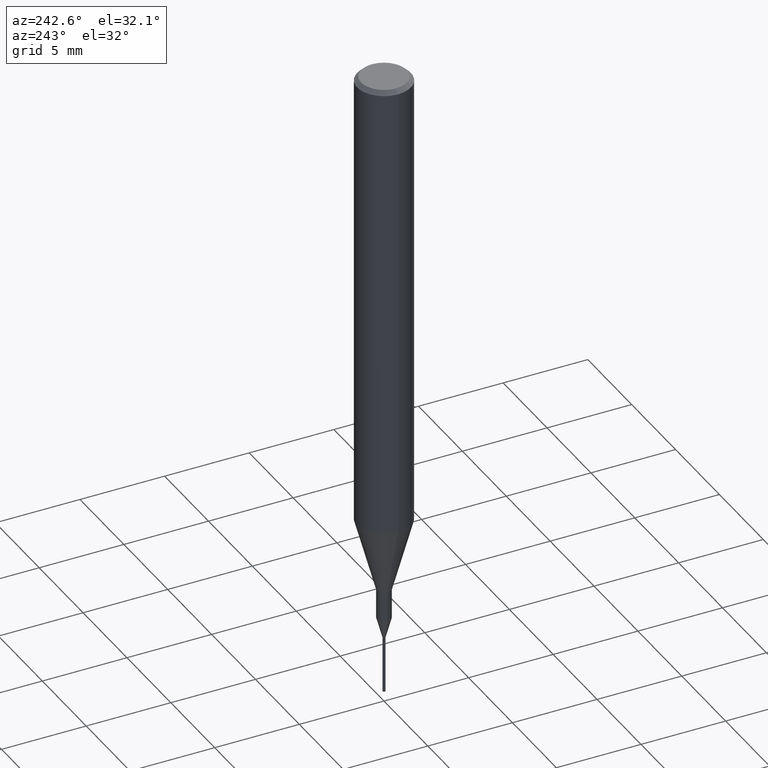
[diagram: clean part render]
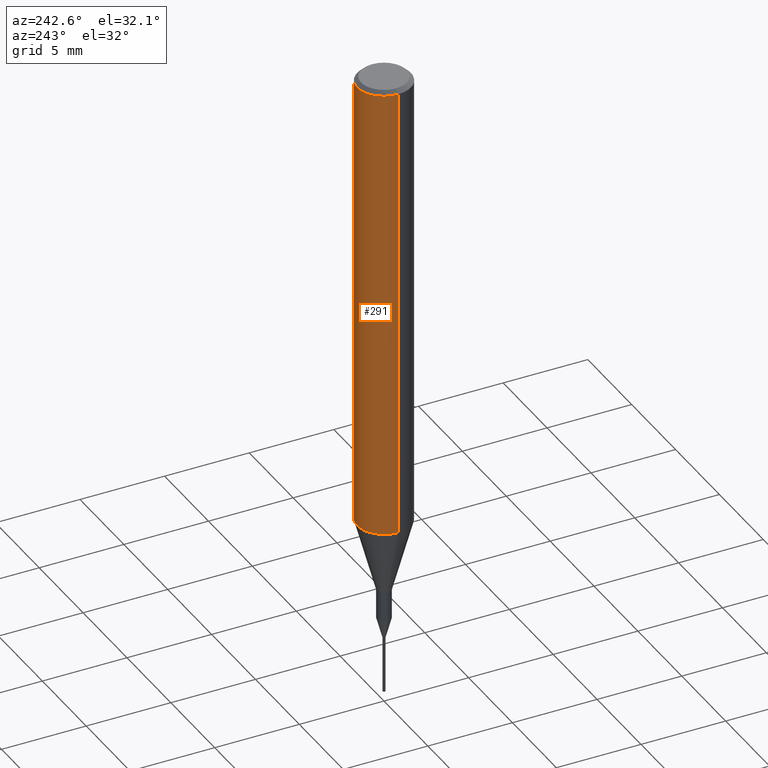
[diagram: same view with one face highlighted and labeled with its STEP entity id]
A machine part, auxiliary view. The second image highlights one B-rep face of the part: STEP entity #291.
In plain terms, the highlighted cylindrical surface (edge-blend (fillet) strip) has radius 1.5875 mm, axis along (-0, 0, 1).
Its self-contained STEP definition (entity closure, byte-faithful):
#19 = ORIENTED_EDGE ( 'NONE', *, *, #331, .F. ) ;
#25 = DIRECTION ( 'NONE',  ( -2.445468806185136597E-29, 3.491481338843145583E-15, 1.000000000000000000 ) ) ;
#39 = VECTOR ( 'NONE', #324, 39.37007874015748143 ) ;
#42 = EDGE_CURVE ( 'NONE', #295, #378, #130, .T. ) ;
#67 = CARTESIAN_POINT ( 'NONE',  ( -0.06250000000000012490, -3.317607122755211895E-15, -1.077392650149939346 ) ) ;
#70 = DIRECTION ( 'NONE',  ( 1.000000000000000000, -6.982962677686266711E-15, 4.876176775795935793E-29 ) ) ;
#130 = LINE ( 'NONE', #307, #381 ) ;
#149 = CARTESIAN_POINT ( 'NONE',  ( -0.06250000000000006939, 4.440892098500631092E-16, -3.074334431409319267E-30 ) ) ;
#157 = CARTESIAN_POINT ( 'NONE',  ( 0.000000000000000000, 0.000000000000000000, 0.000000000000000000 ) ) ;
#169 = ORIENTED_EDGE ( 'NONE', *, *, #42, .F. ) ;
#179 = DIRECTION ( 'NONE',  ( -2.445468806185136877E-29, 3.491481338843145188E-15, 1.000000000000000000 ) ) ;
#196 = DIRECTION ( 'NONE',  ( -2.445468806185136597E-29, 3.491481338843145583E-15, 1.000000000000000000 ) ) ;
#234 = FACE_OUTER_BOUND ( 'NONE', #519, .T. ) ;
#254 = VERTEX_POINT ( 'NONE', #333 ) ;
#267 = EDGE_CURVE ( 'NONE', #295, #341, #573, .T. ) ;
#291 = ADVANCED_FACE ( 'NONE', ( #234 ), #569, .T. ) ;
#293 = CARTESIAN_POINT ( 'NONE',  ( 0.06250000000000012490, -4.198131499960668153E-15, -1.077392650149939346 ) ) ;
#295 = VERTEX_POINT ( 'NONE', #293 ) ;
#307 = CARTESIAN_POINT ( 'NONE',  ( 0.06250000000000006939, -4.364351673553921624E-16, 3.047610484872463374E-30 ) ) ;
#309 = AXIS2_PLACEMENT_3D ( 'NONE', #411, #25, #325 ) ;
#324 = DIRECTION ( 'NONE',  ( -2.445468806185136877E-29, 3.491481338843145188E-15, 1.000000000000000000 ) ) ;
#325 = DIRECTION ( 'NONE',  ( 1.000000000000000000, -6.982962677686264344E-15, 0.000000000000000000 ) ) ;
#330 = CARTESIAN_POINT ( 'NONE',  ( 2.292627005798580623E-31, -3.273263755165470184E-17, -0.009375000000000060368 ) ) ;
#331 = EDGE_CURVE ( 'NONE', #378, #254, #343, .T. ) ;
#333 = CARTESIAN_POINT ( 'NONE',  ( -0.06250000000000000000, -1.453125275228401137E-15, -0.009375000000000060368 ) ) ;
#341 = VERTEX_POINT ( 'NONE', #67 ) ;
#343 = CIRCLE ( 'NONE', #421, 0.06250000000000000000 ) ;
#367 = DIRECTION ( 'NONE',  ( 1.000000000000000000, -6.982962677686266711E-15, 0.000000000000000000 ) ) ;
#378 = VERTEX_POINT ( 'NONE', #554 ) ;
#381 = VECTOR ( 'NONE', #179, 39.37007874015748143 ) ;
#411 = CARTESIAN_POINT ( 'NONE',  ( 2.634730117954813298E-29, -3.761696332605275695E-15, -1.077392650149939346 ) ) ;
#421 = AXIS2_PLACEMENT_3D ( 'NONE', #330, #196, #367 ) ;
#434 = ORIENTED_EDGE ( 'NONE', *, *, #267, .T. ) ;
#436 = ORIENTED_EDGE ( 'NONE', *, *, #571, .T. ) ;
#485 = AXIS2_PLACEMENT_3D ( 'NONE', #157, #507, #70 ) ;
#506 = LINE ( 'NONE', #149, #39 ) ;
#507 = DIRECTION ( 'NONE',  ( -2.445468806185136597E-29, 3.491481338843145583E-15, 1.000000000000000000 ) ) ;
#519 = EDGE_LOOP ( 'NONE', ( #434, #436, #19, #169 ) ) ;
#554 = CARTESIAN_POINT ( 'NONE',  ( 0.06250000000000000000, -4.691678049070463404E-16, -0.009375000000000060368 ) ) ;
#569 = CYLINDRICAL_SURFACE ( 'NONE', #485, 0.06250000000000006939 ) ;
#571 = EDGE_CURVE ( 'NONE', #341, #254, #506, .T. ) ;
#573 = CIRCLE ( 'NONE', #309, 0.06250000000000012490 ) ;